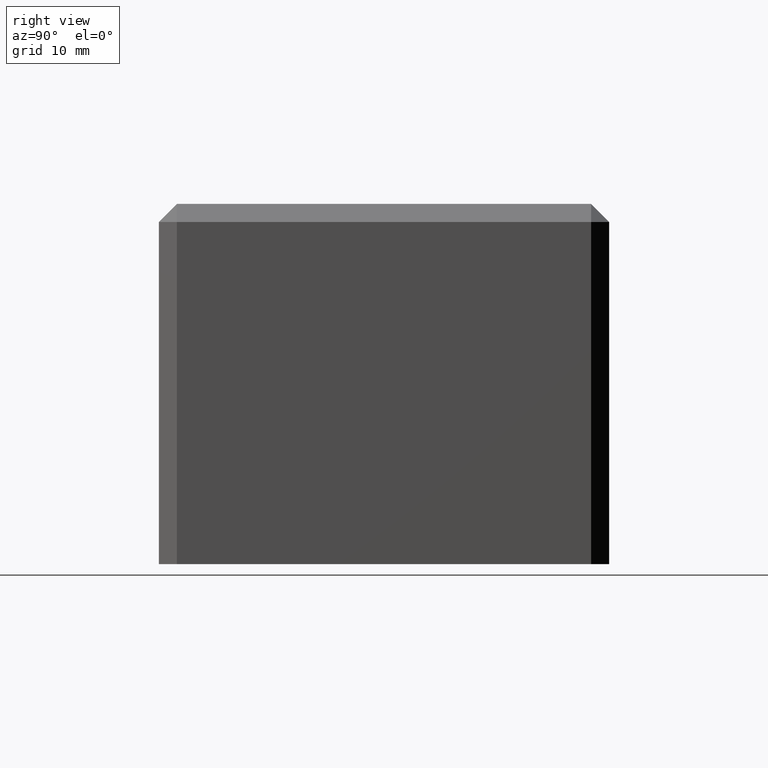
[diagram: clean part render]
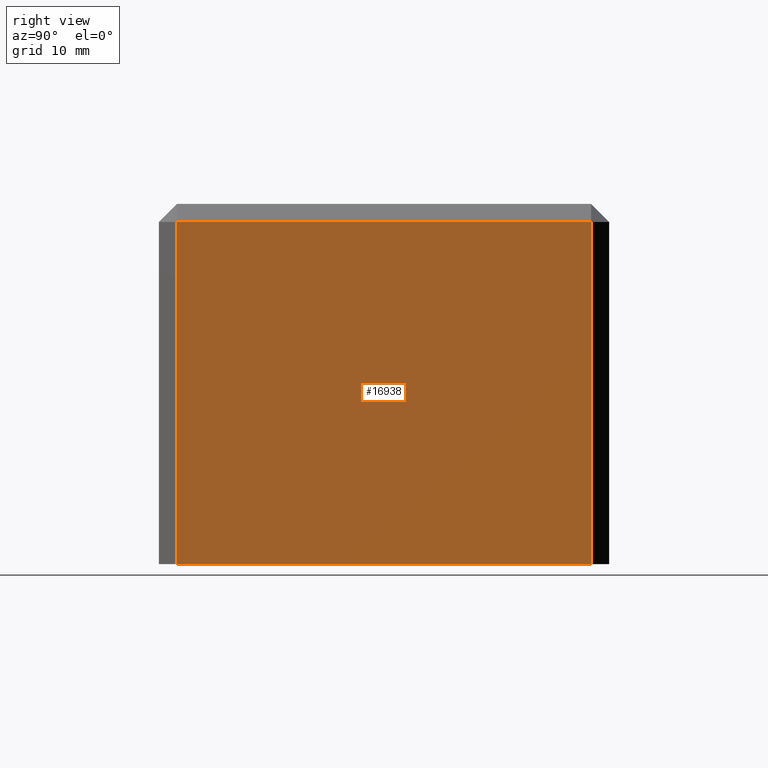
[diagram: same view with one face highlighted and labeled with its STEP entity id]
A machine part, right view. The second image highlights one B-rep face of the part: STEP entity #16938.
In plain terms, the highlighted planar face has unit normal (-1, 0, 0).
Its self-contained STEP definition (entity closure, byte-faithful):
#700 = DIRECTION ( 'NONE',  ( -1.000000000000000000, 0.0000000000000000000, 0.0000000000000000000 ) ) ;
#725 = EDGE_CURVE ( 'NONE', #21674, #1237, #25355, .T. ) ;
#1237 = VERTEX_POINT ( 'NONE', #16464 ) ;
#1294 = DIRECTION ( 'NONE',  ( 0.0000000000000000000, 0.0000000000000000000, 1.000000000000000000 ) ) ;
#2038 = ORIENTED_EDGE ( 'NONE', *, *, #7795, .T. ) ;
#2192 = DIRECTION ( 'NONE',  ( 0.0000000000000000000, 0.0000000000000000000, -1.000000000000000000 ) ) ;
#2876 = CARTESIAN_POINT ( 'NONE',  ( 24.99999999999999300, 25.00000000000000700, 20.00000000000000000 ) ) ;
#2998 = CARTESIAN_POINT ( 'NONE',  ( 24.99999999999999300, 22.99999999999997900, 17.99999999999997200 ) ) ;
#4333 = CARTESIAN_POINT ( 'NONE',  ( 24.99999999999999300, -24.99999999999999300, 17.99999999999997200 ) ) ;
#5783 = EDGE_CURVE ( 'NONE', #1237, #17962, #8776, .T. ) ;
#6272 = CARTESIAN_POINT ( 'NONE',  ( 24.99999999999999300, 22.99999999999997900, -20.00000000000000000 ) ) ;
#6350 = VECTOR ( 'NONE', #2192, 1000.000000000000000 ) ;
#6745 = CARTESIAN_POINT ( 'NONE',  ( 24.99999999999999300, -22.99999999999996400, 17.99999999999997200 ) ) ;
#6758 = VECTOR ( 'NONE', #1294, 1000.000000000000000 ) ;
#7795 = EDGE_CURVE ( 'NONE', #17962, #22429, #20650, .T. ) ;
#8002 = EDGE_CURVE ( 'NONE', #22429, #21674, #22548, .T. ) ;
#8118 = CARTESIAN_POINT ( 'NONE',  ( 24.99999999999999300, 25.00000000000000700, -20.00000000000000000 ) ) ;
#8776 = LINE ( 'NONE', #8118, #16828 ) ;
#9023 = VECTOR ( 'NONE', #12335, 1000.000000000000000 ) ;
#9319 = DIRECTION ( 'NONE',  ( 0.0000000000000000000, 0.0000000000000000000, 1.000000000000000000 ) ) ;
#10074 = DIRECTION ( 'NONE',  ( -0.0000000000000000000, 1.000000000000000000, -0.0000000000000000000 ) ) ;
#10843 = ORIENTED_EDGE ( 'NONE', *, *, #8002, .T. ) ;
#12335 = DIRECTION ( 'NONE',  ( 0.0000000000000000000, -1.000000000000000000, 0.0000000000000000000 ) ) ;
#15923 = EDGE_LOOP ( 'NONE', ( #10843, #21327, #22486, #2038 ) ) ;
#16464 = CARTESIAN_POINT ( 'NONE',  ( 24.99999999999999600, -22.99999999999995400, -20.00000000000000000 ) ) ;
#16828 = VECTOR ( 'NONE', #10074, 1000.000000000000000 ) ;
#16938 = ADVANCED_FACE ( 'NONE', ( #18426 ), #23695, .F. ) ;
#17125 = AXIS2_PLACEMENT_3D ( 'NONE', #2876, #700, #9319 ) ;
#17962 = VERTEX_POINT ( 'NONE', #6272 ) ;
#18426 = FACE_OUTER_BOUND ( 'NONE', #15923, .T. ) ;
#20650 = LINE ( 'NONE', #26095, #6758 ) ;
#21327 = ORIENTED_EDGE ( 'NONE', *, *, #725, .T. ) ;
#21674 = VERTEX_POINT ( 'NONE', #6745 ) ;
#22429 = VERTEX_POINT ( 'NONE', #2998 ) ;
#22486 = ORIENTED_EDGE ( 'NONE', *, *, #5783, .T. ) ;
#22548 = LINE ( 'NONE', #4333, #9023 ) ;
#23695 = PLANE ( 'NONE',  #17125 ) ;
#24998 = CARTESIAN_POINT ( 'NONE',  ( 24.99999999999999300, -22.99999999999996400, 20.00000000000000000 ) ) ;
#25355 = LINE ( 'NONE', #24998, #6350 ) ;
#26095 = CARTESIAN_POINT ( 'NONE',  ( 24.99999999999999300, 22.99999999999997900, 20.00000000000000000 ) ) ;